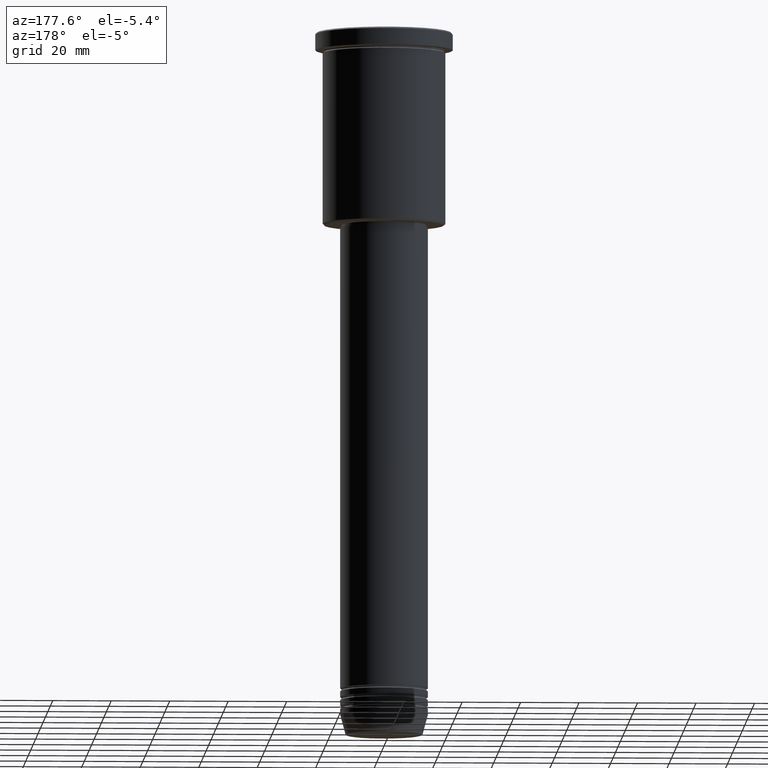
[diagram: clean part render]
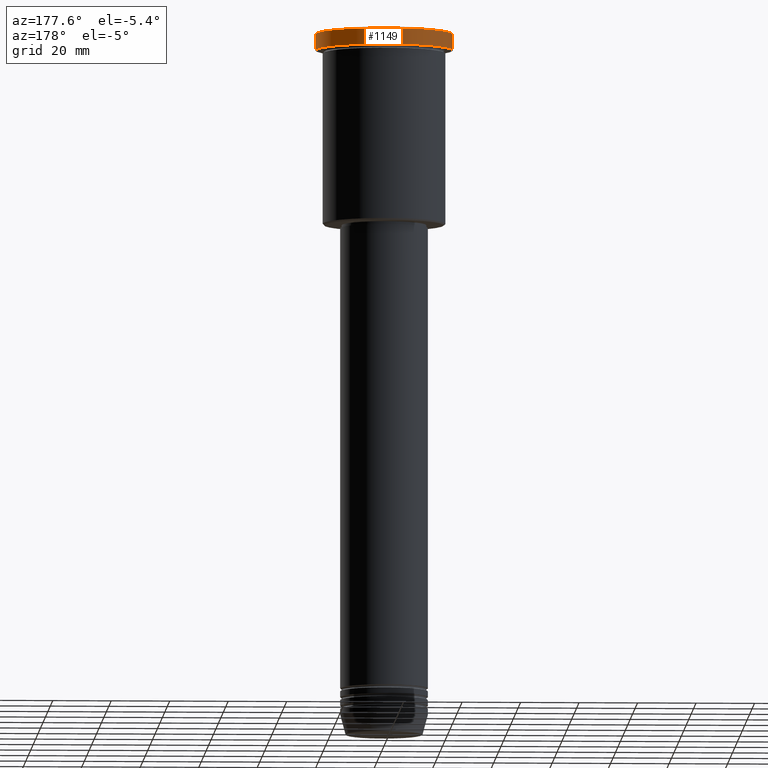
[diagram: same view with one face highlighted and labeled with its STEP entity id]
A machine part, auxiliary view. The second image highlights one B-rep face of the part: STEP entity #1149.
In plain terms, the highlighted cylindrical surface (partial cylindrical patch) has radius 23.5 mm, axis along (-0, -0, 1).
Its self-contained STEP definition (entity closure, byte-faithful):
#19 = VERTEX_POINT ( 'NONE', #395 ) ;
#69 = CIRCLE ( 'NONE', #938, 23.50000000000000000 ) ;
#91 = CARTESIAN_POINT ( 'NONE',  ( 23.50000000000000000, 0.000000000000000000, 0.000000000000000000 ) ) ;
#100 = EDGE_CURVE ( 'NONE', #19, #616, #1117, .T. ) ;
#109 = VERTEX_POINT ( 'NONE', #638 ) ;
#117 = EDGE_CURVE ( 'NONE', #19, #729, #892, .T. ) ;
#134 = EDGE_CURVE ( 'NONE', #109, #729, #69, .T. ) ;
#187 = DIRECTION ( 'NONE',  ( 0.000000000000000000, 0.000000000000000000, -1.000000000000000000 ) ) ;
#222 = VECTOR ( 'NONE', #681, 1000.000000000000000 ) ;
#279 = CARTESIAN_POINT ( 'NONE',  ( 0.000000000000000000, 0.000000000000000000, -5.999999999999994671 ) ) ;
#317 = EDGE_LOOP ( 'NONE', ( #1011, #595, #699, #1088 ) ) ;
#324 = CARTESIAN_POINT ( 'NONE',  ( 0.000000000000000000, 0.000000000000000000, 0.000000000000000000 ) ) ;
#352 = DIRECTION ( 'NONE',  ( -0.000000000000000000, -0.000000000000000000, 1.000000000000000000 ) ) ;
#395 = CARTESIAN_POINT ( 'NONE',  ( 23.50000000000000000, 0.000000000000000000, -5.999999999999994671 ) ) ;
#406 = DIRECTION ( 'NONE',  ( 1.000000000000000000, 0.000000000000000000, 0.000000000000000000 ) ) ;
#446 = DIRECTION ( 'NONE',  ( -0.000000000000000000, -0.000000000000000000, 1.000000000000000000 ) ) ;
#546 = DIRECTION ( 'NONE',  ( 1.000000000000000000, 0.000000000000000000, 0.000000000000000000 ) ) ;
#595 = ORIENTED_EDGE ( 'NONE', *, *, #708, .T. ) ;
#616 = VERTEX_POINT ( 'NONE', #1127 ) ;
#638 = CARTESIAN_POINT ( 'NONE',  ( -23.50000000000000000, 2.877919977996280320E-15, -0.5000000000000281997 ) ) ;
#657 = DIRECTION ( 'NONE',  ( 1.000000000000000000, 0.000000000000000000, 0.000000000000000000 ) ) ;
#681 = DIRECTION ( 'NONE',  ( -0.000000000000000000, -0.000000000000000000, 1.000000000000000000 ) ) ;
#699 = ORIENTED_EDGE ( 'NONE', *, *, #134, .T. ) ;
#708 = EDGE_CURVE ( 'NONE', #616, #109, #1159, .T. ) ;
#729 = VERTEX_POINT ( 'NONE', #1047 ) ;
#780 = CARTESIAN_POINT ( 'NONE',  ( -23.50000000000000000, 2.877919977996280320E-15, 0.000000000000000000 ) ) ;
#809 = CARTESIAN_POINT ( 'NONE',  ( 0.000000000000000000, 0.000000000000000000, -0.5000000000000281997 ) ) ;
#856 = VECTOR ( 'NONE', #446, 1000.000000000000000 ) ;
#872 = AXIS2_PLACEMENT_3D ( 'NONE', #279, #352, #657 ) ;
#892 = LINE ( 'NONE', #91, #856 ) ;
#938 = AXIS2_PLACEMENT_3D ( 'NONE', #809, #187, #546 ) ;
#961 = DIRECTION ( 'NONE',  ( -0.000000000000000000, -0.000000000000000000, 1.000000000000000000 ) ) ;
#1011 = ORIENTED_EDGE ( 'NONE', *, *, #100, .T. ) ;
#1037 = CYLINDRICAL_SURFACE ( 'NONE', #1082, 23.50000000000000000 ) ;
#1047 = CARTESIAN_POINT ( 'NONE',  ( 23.50000000000000000, 0.000000000000000000, -0.5000000000000281997 ) ) ;
#1082 = AXIS2_PLACEMENT_3D ( 'NONE', #324, #961, #406 ) ;
#1088 = ORIENTED_EDGE ( 'NONE', *, *, #117, .F. ) ;
#1117 = CIRCLE ( 'NONE', #872, 23.50000000000000000 ) ;
#1127 = CARTESIAN_POINT ( 'NONE',  ( -23.50000000000000000, 2.877919977996280320E-15, -5.999999999999994671 ) ) ;
#1148 = FACE_OUTER_BOUND ( 'NONE', #317, .T. ) ;
#1149 = ADVANCED_FACE ( 'NONE', ( #1148 ), #1037, .T. ) ;
#1159 = LINE ( 'NONE', #780, #222 ) ;